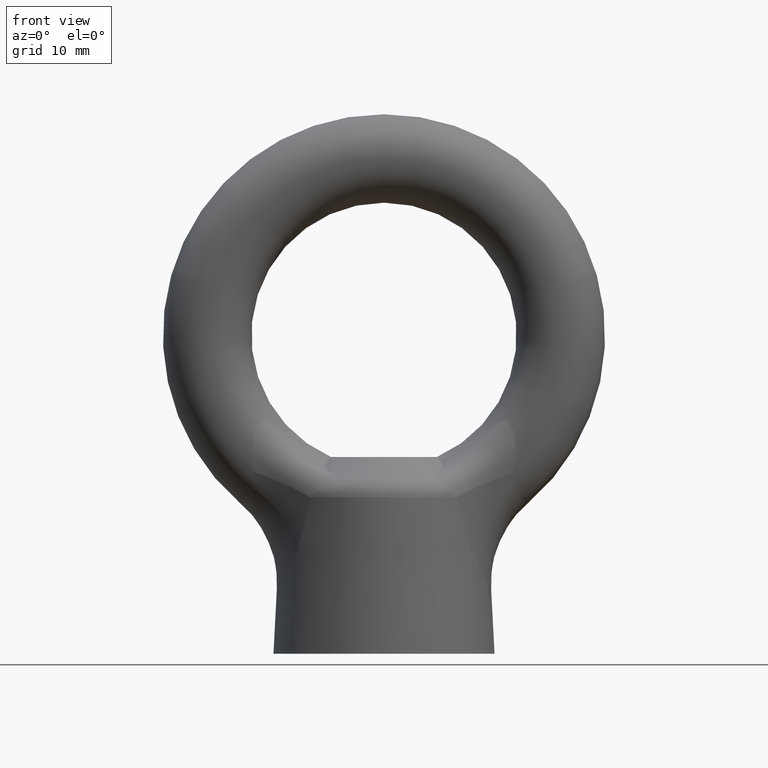
[diagram: clean part render]
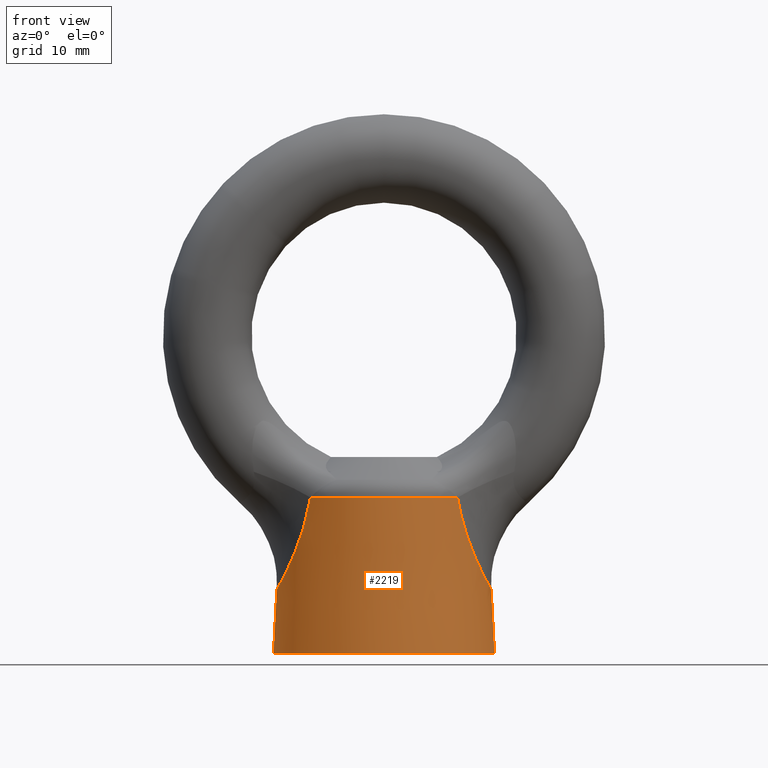
[diagram: same view with one face highlighted and labeled with its STEP entity id]
A machine part, front view. The second image highlights one B-rep face of the part: STEP entity #2219.
In plain terms, the highlighted conical surface has half-angle 3.013 deg.
Its self-contained STEP definition (entity closure, byte-faithful):
#2 = EDGE_CURVE ( 'NONE', #7, #1549, #2281, .T. ) ;
#5 = VERTEX_POINT ( 'NONE', #2276 ) ;
#7 = VERTEX_POINT ( 'NONE', #2275 ) ;
#1549 = VERTEX_POINT ( 'NONE', #2267 ) ;
#1998 = VERTEX_POINT ( 'NONE', #2727 ) ;
#2094 = EDGE_CURVE ( 'NONE', #5, #1998, #11129, .T. ) ;
#2217 = EDGE_LOOP ( 'NONE', ( #2220, #2221, #2228, #2231, #2224, #2225 ) ) ;
#2219 = ADVANCED_FACE ( 'NONE', ( #2428 ), #2430, .T. ) ;
#2220 = ORIENTED_EDGE ( 'NONE', *, *, #2094, .F. ) ;
#2221 = ORIENTED_EDGE ( 'NONE', *, *, #2227, .T. ) ;
#2222 = VERTEX_POINT ( 'NONE', #2427 ) ;
#2223 = EDGE_CURVE ( 'NONE', #2230, #7, #2400, .T. ) ;
#2224 = ORIENTED_EDGE ( 'NONE', *, *, #2, .T. ) ;
#2225 = ORIENTED_EDGE ( 'NONE', *, *, #2226, .F. ) ;
#2226 = EDGE_CURVE ( 'NONE', #1998, #1549, #2401, .T. ) ;
#2227 = EDGE_CURVE ( 'NONE', #5, #2222, #2455, .T. ) ;
#2228 = ORIENTED_EDGE ( 'NONE', *, *, #2229, .T. ) ;
#2229 = EDGE_CURVE ( 'NONE', #2222, #2230, #2453, .T. ) ;
#2230 = VERTEX_POINT ( 'NONE', #2449 ) ;
#2231 = ORIENTED_EDGE ( 'NONE', *, *, #2223, .T. ) ;
#2267 = CARTESIAN_POINT ( 'NONE',  ( -12.50000000000000000, 0.0000000000000000000, -36.00001200000024700 ) ) ;
#2275 = CARTESIAN_POINT ( 'NONE',  ( -12.11609394155115800, -1.212272167946206500E-011, -28.70585542754450300 ) ) ;
#2276 = CARTESIAN_POINT ( 'NONE',  ( 12.11609394155115800, 1.212607250115323100E-011, -28.70585542754450300 ) ) ;
#2278 = DIRECTION ( 'NONE',  ( -0.05255925375995292000, 0.0000000000000000000, -0.9986178071936213700 ) ) ;
#2279 = VECTOR ( 'NONE', #2278, 1000.000000000000100 ) ;
#2280 = CARTESIAN_POINT ( 'NONE',  ( -12.50000000000000000, 0.0000000000000000000, -36.00001200000024700 ) ) ;
#2281 = LINE ( 'NONE', #2280, #2279 ) ;
#2400 = B_SPLINE_CURVE_WITH_KNOTS ( 'NONE', 3,
 ( #2402, #2474, #2473, #2472, #2471, #2470, #2469, #2468, #2467, #2466, #2465, #2464, #2463, #2462, #2461, #2460, #2459, #2458, #2457, #2456 ),
 .UNSPECIFIED., .F., .F.,
 ( 4, 2, 2, 2, 2, 2, 2, 2, 2, 4 ),
 ( 0.0000000000000000000, 0.003752816994193623200, 0.005629225491290439600, 0.007505633988387256900, 0.009382042485484073200, 0.01032024673403248400, 0.01125845098258089500, 0.01313485947967772000, 0.01407306372822613100, 0.01501126797677454300 ),
 .UNSPECIFIED. ) ;
#2401 = CIRCLE ( 'NONE', #2406, 12.50000000000000000 ) ;
#2402 = CARTESIAN_POINT ( 'NONE',  ( -8.305858631755510800, -8.055284626468530700, -18.33836285529485400 ) ) ;
#2403 = DIRECTION ( 'NONE',  ( -1.000000000000000000, 0.0000000000000000000, 0.0000000000000000000 ) ) ;
#2404 = DIRECTION ( 'NONE',  ( 0.0000000000000000000, 0.0000000000000000000, -1.000000000000000000 ) ) ;
#2405 = CARTESIAN_POINT ( 'NONE',  ( 0.0000000000000000000, 0.0000000000000000000, -36.00001200000024700 ) ) ;
#2406 = AXIS2_PLACEMENT_3D ( 'NONE', #2405, #2404, #2403 ) ;
#2407 = DIRECTION ( 'NONE',  ( -1.000000000000000000, 0.0000000000000000000, 0.0000000000000000000 ) ) ;
#2424 = DIRECTION ( 'NONE',  ( 0.0000000000000000000, 0.0000000000000000000, -1.000000000000000000 ) ) ;
#2425 = CARTESIAN_POINT ( 'NONE',  ( 0.0000000000000000000, 0.0000000000000000000, -36.00001200000024700 ) ) ;
#2426 = AXIS2_PLACEMENT_3D ( 'NONE', #2425, #2424, #2407 ) ;
#2427 = CARTESIAN_POINT ( 'NONE',  ( 8.305858631755510800, -8.055284626468520100, -18.33836285529485400 ) ) ;
#2428 = FACE_OUTER_BOUND ( 'NONE', #2217, .T. ) ;
#2430 = CONICAL_SURFACE ( 'NONE', #2426, 12.50000000000000000, 0.05258348283033272000 ) ;
#2431 = CARTESIAN_POINT ( 'NONE',  ( 9.329123180308270600, -7.211188461993637900, -22.48790346171858800 ) ) ;
#2432 = CARTESIAN_POINT ( 'NONE',  ( 9.518033044828202400, -7.012662046689845500, -23.05167285936345000 ) ) ;
#2433 = CARTESIAN_POINT ( 'NONE',  ( 9.914400259155618400, -6.544034374891289500, -24.13368664177397300 ) ) ;
#2434 = CARTESIAN_POINT ( 'NONE',  ( 10.12257371071711500, -6.273522081769234800, -24.65436590740396400 ) ) ;
#2435 = CARTESIAN_POINT ( 'NONE',  ( 10.54895110816651500, -5.638435375143806100, -25.64882959763143000 ) ) ;
#2436 = CARTESIAN_POINT ( 'NONE',  ( 10.76259772931861000, -5.280360270213693100, -26.11197237710469200 ) ) ;
#2437 = CARTESIAN_POINT ( 'NONE',  ( 11.06925846595863100, -4.672444984202361900, -26.74445123051933800 ) ) ;
#2438 = CARTESIAN_POINT ( 'NONE',  ( 11.16926418007342100, -4.457766125010652800, -26.94511110714390900 ) ) ;
#2439 = CARTESIAN_POINT ( 'NONE',  ( 11.36217890392685700, -4.000604353909984900, -27.32389849453337400 ) ) ;
#2440 = CARTESIAN_POINT ( 'NONE',  ( 11.45544556828973800, -3.756929085690449400, -27.50267395580982600 ) ) ;
#2441 = CARTESIAN_POINT ( 'NONE',  ( 11.62821439386261000, -3.246471603417834900, -27.82812345101004300 ) ) ;
#2442 = CARTESIAN_POINT ( 'NONE',  ( 11.70803097471387300, -2.978643784884000400, -27.97542680141103600 ) ) ;
#2443 = CARTESIAN_POINT ( 'NONE',  ( 11.84821999531743200, -2.427971286829069300, -28.23096205131537000 ) ) ;
#2444 = CARTESIAN_POINT ( 'NONE',  ( 11.90908674811437100, -2.143842399067222200, -28.34013277987500200 ) ) ;
#2445 = CARTESIAN_POINT ( 'NONE',  ( 12.05966099946868300, -1.262812832819502500, -28.60815104982355500 ) ) ;
#2446 = CARTESIAN_POINT ( 'NONE',  ( 12.11609394155185600, -0.6283452404498557400, -28.70585542754573500 ) ) ;
#2447 = CARTESIAN_POINT ( 'NONE',  ( 12.11609394155115800, 1.212607250115323100E-011, -28.70585542754450300 ) ) ;
#2449 = CARTESIAN_POINT ( 'NONE',  ( -8.305858631755510800, -8.055284626468530700, -18.33836285529485400 ) ) ;
#2450 = DIRECTION ( 'NONE',  ( 1.000000000000000000, 0.0000000000000000000, 0.0000000000000000000 ) ) ;
#2451 = DIRECTION ( 'NONE',  ( 0.0000000000000000000, 0.0000000000000000000, -1.000000000000000000 ) ) ;
#2452 = AXIS2_PLACEMENT_3D ( 'NONE', #2454, #2451, #2450 ) ;
#2453 = CIRCLE ( 'NONE', #2452, 11.57043205866261800 ) ;
#2454 = CARTESIAN_POINT ( 'NONE',  ( 0.0000000000000000000, 0.0000000000000000000, -18.33836285529485400 ) ) ;
#2455 = B_SPLINE_CURVE_WITH_KNOTS ( 'NONE', 3,
 ( #2447, #2446, #2445, #2444, #2443, #2442, #2441, #2440, #2439, #2438, #2437, #2436, #2435, #2434, #2433, #2432, #2431, #2504, #2503, #2502 ),
 .UNSPECIFIED., .F., .F.,
 ( 4, 2, 2, 2, 2, 2, 2, 2, 2, 4 ),
 ( 0.01501126797677453500, 0.01688524067291828300, 0.01782222702099015700, 0.01875921336906203100, 0.01969619971713390500, 0.02063318606520577600, 0.02250715876134952400, 0.02438113145749327300, 0.02625510415363701400, 0.03000304954592450700 ),
 .UNSPECIFIED. ) ;
#2456 = CARTESIAN_POINT ( 'NONE',  ( -12.11609394155115800, -1.212272167946206500E-011, -28.70585542754450300 ) ) ;
#2457 = CARTESIAN_POINT ( 'NONE',  ( -12.11609394155081700, -0.3145809836997249800, -28.70585542754390200 ) ) ;
#2458 = CARTESIAN_POINT ( 'NONE',  ( -12.10263562553484500, -0.6254152121334126700, -28.68242108174283400 ) ) ;
#2459 = CARTESIAN_POINT ( 'NONE',  ( -12.05033325481112000, -1.239936780313364500, -28.59068925544353900 ) ) ;
#2460 = CARTESIAN_POINT ( 'NONE',  ( -12.01120985334112100, -1.545141816199463900, -28.52189546074121300 ) ) ;
#2461 = CARTESIAN_POINT ( 'NONE',  ( -11.85895552016103400, -2.439456622413728400, -28.25092762188631600 ) ) ;
#2462 = CARTESIAN_POINT ( 'NONE',  ( -11.71192309754056800, -2.999898688313642000, -27.98588010147351600 ) ) ;
#2463 = CARTESIAN_POINT ( 'NONE',  ( -11.45444734907678900, -3.759498132756876400, -27.50075698296764100 ) ) ;
#2464 = CARTESIAN_POINT ( 'NONE',  ( -11.36216355644244500, -4.000774454059445000, -27.32389398092215100 ) ) ;
#2465 = CARTESIAN_POINT ( 'NONE',  ( -11.16756113635436000, -4.461667014764007200, -26.94174133839179000 ) ) ;
#2466 = CARTESIAN_POINT ( 'NONE',  ( -11.06607051006733000, -4.679156754355191500, -26.73800921179454100 ) ) ;
#2467 = CARTESIAN_POINT ( 'NONE',  ( -10.75789802276987200, -5.288871173518888500, -26.10200597235349600 ) ) ;
#2468 = CARTESIAN_POINT ( 'NONE',  ( -10.54574372566047700, -5.643323338948661700, -25.64144474076720900 ) ) ;
#2469 = CARTESIAN_POINT ( 'NONE',  ( -10.12400493424545000, -6.271279229887412000, -24.65760772531903200 ) ) ;
#2470 = CARTESIAN_POINT ( 'NONE',  ( -9.912866512603244500, -6.546006382775774800, -24.12980054337813500 ) ) ;
#2471 = CARTESIAN_POINT ( 'NONE',  ( -9.515784235838719200, -7.015160661438753400, -23.04523035886422700 ) ) ;
#2472 = CARTESIAN_POINT ( 'NONE',  ( -9.328943209134388700, -7.211290280795806100, -22.48704240540693200 ) ) ;
#2473 = CARTESIAN_POINT ( 'NONE',  ( -8.811475003292786200, -7.709534214363434200, -20.77032945218719800 ) ) ;
#2474 = CARTESIAN_POINT ( 'NONE',  ( -8.524799709016058100, -7.922184952767157300, -19.56392693677560500 ) ) ;
#2502 = CARTESIAN_POINT ( 'NONE',  ( 8.305858631755510800, -8.055284626468520100, -18.33836285529485400 ) ) ;
#2503 = CARTESIAN_POINT ( 'NONE',  ( 8.524704079188021300, -7.922243088495217300, -19.56339163072635400 ) ) ;
#2504 = CARTESIAN_POINT ( 'NONE',  ( 8.807791487610563400, -7.712937266836587600, -20.75757877470540800 ) ) ;
#2727 = CARTESIAN_POINT ( 'NONE',  ( 12.50000000000000000, 1.530757942277971600E-015, -36.00001200000024700 ) ) ;
#11126 = DIRECTION ( 'NONE',  ( 0.05255925375995292000, 6.436439610660101900E-018, -0.9986178071936213700 ) ) ;
#11127 = VECTOR ( 'NONE', #11126, 1000.000000000000100 ) ;
#11128 = CARTESIAN_POINT ( 'NONE',  ( 12.50000000000000000, 1.530757942277971600E-015, -36.00001200000024700 ) ) ;
#11129 = LINE ( 'NONE', #11128, #11127 ) ;